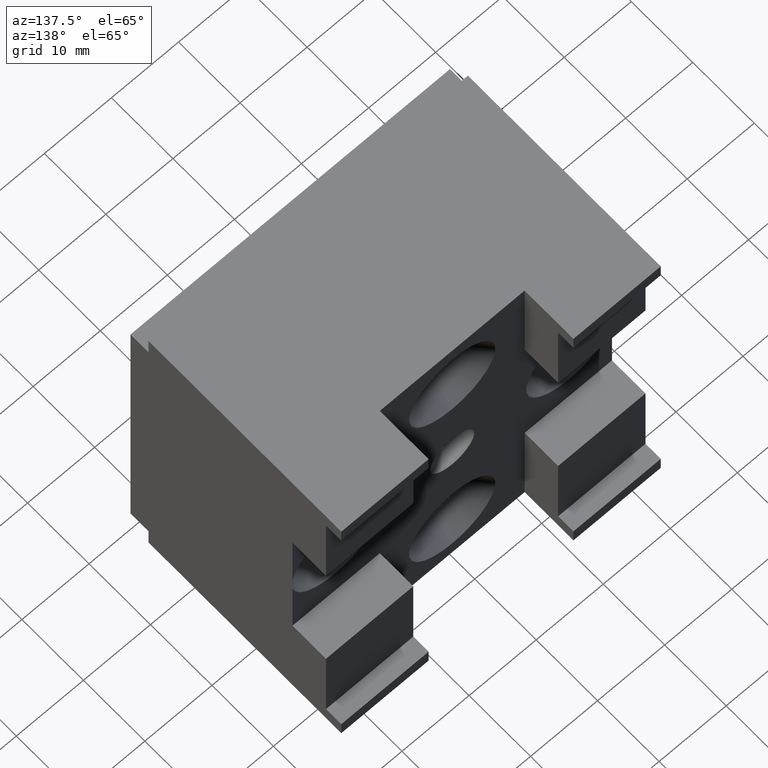
[diagram: clean part render]
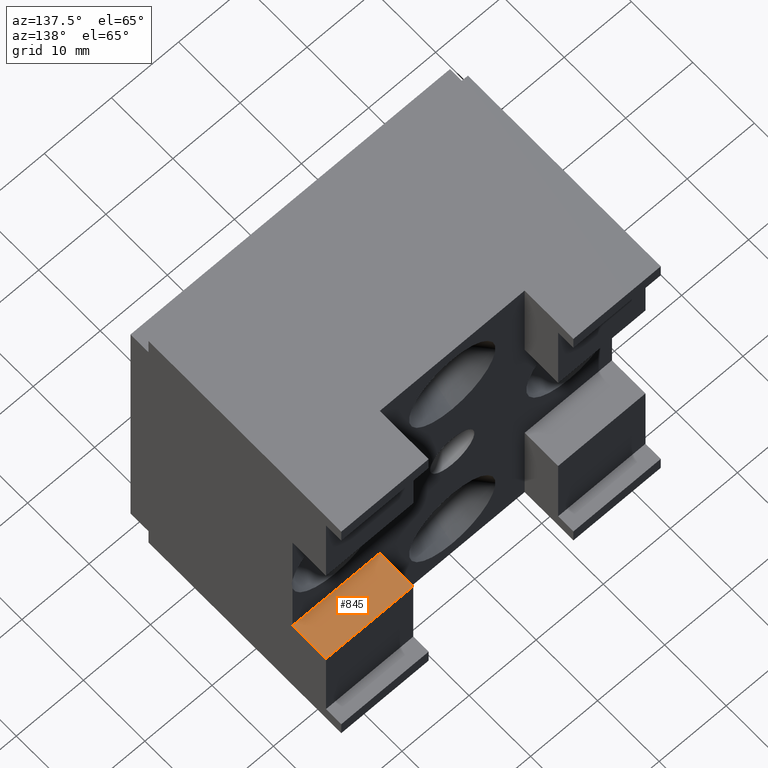
[diagram: same view with one face highlighted and labeled with its STEP entity id]
A machine part, auxiliary view. The second image highlights one B-rep face of the part: STEP entity #845.
In plain terms, the highlighted planar face has unit normal (0, 0, -1).
Its self-contained STEP definition (entity closure, byte-faithful):
#43 = EDGE_CURVE ( 'NONE', #1439, #1463, #607, .T. ) ;
#49 = EDGE_CURVE ( 'NONE', #1570, #1439, #591, .T. ) ;
#138 = EDGE_CURVE ( 'NONE', #1570, #1465, #1323, .T. ) ;
#268 = CARTESIAN_POINT ( 'NONE',  ( -0.9375000000000003300, 1.251999999999999100, -0.4249999999999994300 ) ) ;
#269 = DIRECTION ( 'NONE',  ( -1.000000000000000000, 1.309289925027225900E-017, -1.124441960279982600E-016 ) ) ;
#326 = CARTESIAN_POINT ( 'NONE',  ( 0.4249999999999999900, 1.037500000000000100, -0.4249999999999994300 ) ) ;
#350 = CARTESIAN_POINT ( 'NONE',  ( 0.4249999999999999900, 1.251999999999999100, -0.4249999999999994300 ) ) ;
#352 = CARTESIAN_POINT ( 'NONE',  ( 0.9375000000000005600, 1.251999999999999100, -0.4249999999999988800 ) ) ;
#386 = CARTESIAN_POINT ( 'NONE',  ( 0.9375000000000005600, 1.037500000000000100, -0.4249999999999988800 ) ) ;
#535 = DIRECTION ( 'NONE',  ( -1.000000000000000000, 1.309289925027225900E-017, -1.124441960279982600E-016 ) ) ;
#566 = PLANE ( 'NONE',  #1303 ) ;
#570 = DIRECTION ( 'NONE',  ( 1.124441960279982600E-016, 3.229997658014710100E-019, -1.000000000000000000 ) ) ;
#571 = CARTESIAN_POINT ( 'NONE',  ( 0.9375000000000005600, 1.037500000000000100, -0.4249999999999988800 ) ) ;
#591 = LINE ( 'NONE', #1495, #593 ) ;
#593 = VECTOR ( 'NONE', #1489, 39.37007874015748100 ) ;
#597 = VECTOR ( 'NONE', #1490, 39.37007874015748100 ) ;
#607 = LINE ( 'NONE', #1488, #597 ) ;
#745 = ORIENTED_EDGE ( 'NONE', *, *, #49, .F. ) ;
#754 = ORIENTED_EDGE ( 'NONE', *, *, #1356, .T. ) ;
#755 = ORIENTED_EDGE ( 'NONE', *, *, #138, .T. ) ;
#786 = ORIENTED_EDGE ( 'NONE', *, *, #43, .F. ) ;
#845 = ADVANCED_FACE ( 'NONE', ( #1380 ), #566, .F. ) ;
#1021 = VECTOR ( 'NONE', #269, 39.37007874015748100 ) ;
#1024 = LINE ( 'NONE', #268, #1021 ) ;
#1236 = DIRECTION ( 'NONE',  ( -1.309289925027225900E-017, 1.000000000000000000, -3.229997658014709200E-019 ) ) ;
#1238 = CARTESIAN_POINT ( 'NONE',  ( 0.9375000000000005600, 1.037500000000000100, -0.4249999999999988800 ) ) ;
#1303 = AXIS2_PLACEMENT_3D ( 'NONE', #571, #570, #535 ) ;
#1323 = LINE ( 'NONE', #1238, #1325 ) ;
#1325 = VECTOR ( 'NONE', #1236, 39.37007874015748100 ) ;
#1356 = EDGE_CURVE ( 'NONE', #1465, #1463, #1024, .T. ) ;
#1380 = FACE_OUTER_BOUND ( 'NONE', #1697, .T. ) ;
#1439 = VERTEX_POINT ( 'NONE', #326 ) ;
#1463 = VERTEX_POINT ( 'NONE', #350 ) ;
#1465 = VERTEX_POINT ( 'NONE', #352 ) ;
#1488 = CARTESIAN_POINT ( 'NONE',  ( 0.4249999999999999900, 1.037500000000000100, -0.4249999999999994300 ) ) ;
#1489 = DIRECTION ( 'NONE',  ( -1.000000000000000000, 1.309289925027225900E-017, -1.124441960279982600E-016 ) ) ;
#1490 = DIRECTION ( 'NONE',  ( -1.309289925027225900E-017, 1.000000000000000000, -3.229997658014709200E-019 ) ) ;
#1495 = CARTESIAN_POINT ( 'NONE',  ( 0.9375000000000005600, 1.037500000000000100, -0.4249999999999988800 ) ) ;
#1570 = VERTEX_POINT ( 'NONE', #386 ) ;
#1697 = EDGE_LOOP ( 'NONE', ( #754, #786, #745, #755 ) ) ;